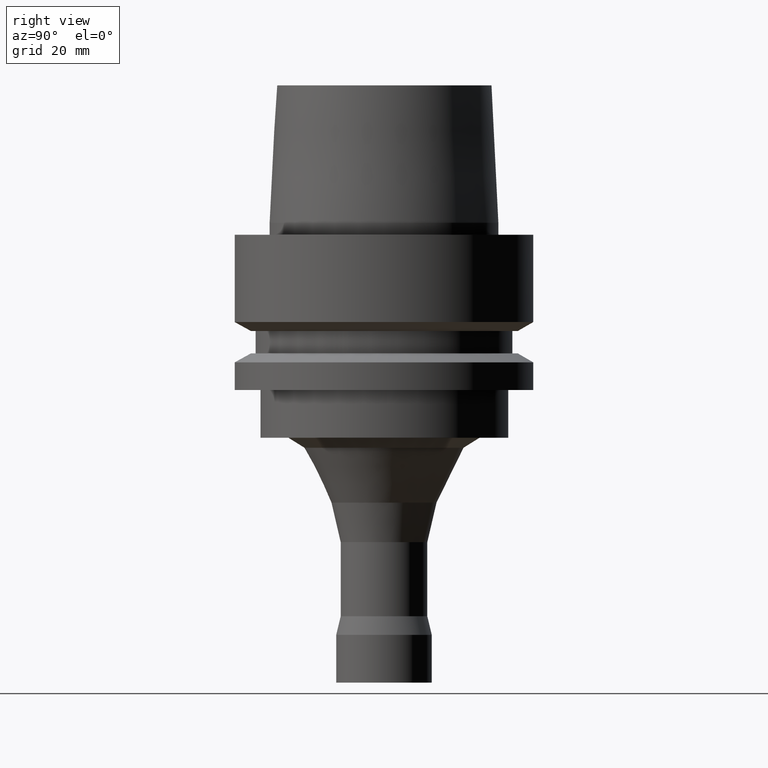
[diagram: clean part render]
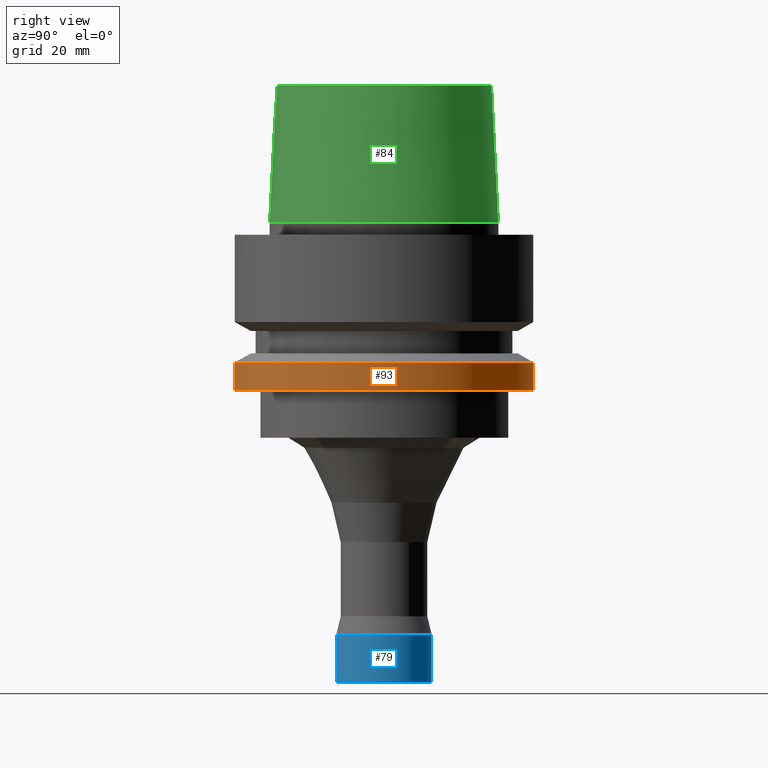
[diagram: same view with three faces highlighted in distinct colors, each labeled with its STEP entity id]
A machine part, right view with three faces highlighted in distinct colors.
Their STEP definitions:

[orange] entity #93 — the highlighted cylindrical surface (bore or boss wall) has radius 25 mm, axis along (-0, -0, 1).
#93=ADVANCED_FACE('',(#149,#150),#151,.T.);
#149=FACE_BOUND('',#210,.T.);
#150=FACE_BOUND('',#211,.T.);
#151=CYLINDRICAL_SURFACE('',#212,25.0);
#210=EDGE_LOOP('',(#307));
#211=EDGE_LOOP('',(#308));
#212=AXIS2_PLACEMENT_3D('',#309,#310,#311);
#307=ORIENTED_EDGE('',*,*,#340,.F.);
#308=ORIENTED_EDGE('',*,*,#339,.T.);
#309=CARTESIAN_POINT('',(1.45051756469206E-015,2.90103512938411E-015,-23.688749535));
#310=DIRECTION('',(-6.12323399573677E-017,-1.22464679914735E-016,1.0));
#311=DIRECTION('',(-1.23259516440783E-032,1.0,1.22464679914735E-016));
#339=EDGE_CURVE('',#376,#376,#377,.T.);
#340=EDGE_CURVE('',#378,#378,#379,.T.);
#376=VERTEX_POINT('',#416);
#377=CIRCLE('',#417,25.0);
#378=VERTEX_POINT('',#418);
#379=CIRCLE('',#419,25.0);
#416=CARTESIAN_POINT('',(1.30899429049255E-015,25.0,-21.37749907));
#417=AXIS2_PLACEMENT_3D('',#473,#474,#475);
#418=CARTESIAN_POINT('',(1.59204083889156E-015,25.0,-26.0));
#419=AXIS2_PLACEMENT_3D('',#476,#477,#478);
#473=CARTESIAN_POINT('',(1.30899429049255E-015,2.6179885809851E-015,-21.37749907));
#474=DIRECTION('',(6.12323399573677E-017,1.22464679914735E-016,-1.0));
#475=DIRECTION('',(-1.23259516440783E-032,1.0,1.22464679914735E-016));
#476=CARTESIAN_POINT('',(1.59204083889156E-015,3.18408167778312E-015,-26.0));
#477=DIRECTION('',(6.12323399573677E-017,1.22464679914735E-016,-1.0));
#478=DIRECTION('',(-1.23259516440783E-032,1.0,1.22464679914735E-016));

[blue] entity #79 — the highlighted cylindrical surface (bore or boss wall) has radius 8 mm, axis along (-0, -0, 1).
#79=ADVANCED_FACE('',(#109,#110),#111,.T.);
#109=FACE_BOUND('',#170,.T.);
#110=FACE_BOUND('',#171,.T.);
#111=CYLINDRICAL_SURFACE('',#172,8.0);
#170=EDGE_LOOP('',(#239));
#171=EDGE_LOOP('',(#240));
#172=AXIS2_PLACEMENT_3D('',#241,#242,#243);
#239=ORIENTED_EDGE('',*,*,#327,.F.);
#240=ORIENTED_EDGE('',*,*,#326,.T.);
#241=CARTESIAN_POINT('',(4.3474961369731E-015,8.69499227394621E-015,-71.0));
#242=DIRECTION('',(-6.12323399573677E-017,-1.22464679914735E-016,1.0));
#243=DIRECTION('',(-1.23259516440783E-032,1.0,1.22464679914735E-016));
#326=EDGE_CURVE('',#350,#350,#351,.T.);
#327=EDGE_CURVE('',#352,#352,#353,.T.);
#350=VERTEX_POINT('',#390);
#351=CIRCLE('',#391,8.0);
#352=VERTEX_POINT('',#392);
#353=CIRCLE('',#393,8.0);
#390=CARTESIAN_POINT('',(4.10256677714363E-015,8.00000000000001,-67.0));
#391=AXIS2_PLACEMENT_3D('',#434,#435,#436);
#392=CARTESIAN_POINT('',(4.59242549680257E-015,8.00000000000001,-75.0));
#393=AXIS2_PLACEMENT_3D('',#437,#438,#439);
#434=CARTESIAN_POINT('',(4.10256677714363E-015,8.20513355428726E-015,-67.0));
#435=DIRECTION('',(6.12323399573677E-017,1.22464679914735E-016,-1.0));
#436=DIRECTION('',(-1.23259516440783E-032,1.0,1.22464679914735E-016));
#437=CARTESIAN_POINT('',(4.59242549680257E-015,9.18485099360515E-015,-75.0));
#438=DIRECTION('',(6.12323399573677E-017,1.22464679914735E-016,-1.0));
#439=DIRECTION('',(-1.23259516440783E-032,1.0,1.22464679914735E-016));

[green] entity #84 — the highlighted conical surface has half-angle 2.862 deg.
#84=ADVANCED_FACE('',(#122,#123),#124,.T.);
#122=FACE_BOUND('',#183,.T.);
#123=FACE_BOUND('',#184,.T.);
#124=CONICAL_SURFACE('',#185,18.5750000005215,0.049958395676703);
#183=EDGE_LOOP('',(#262));
#184=EDGE_LOOP('',(#263));
#185=AXIS2_PLACEMENT_3D('',#264,#265,#266);
#262=ORIENTED_EDGE('',*,*,#331,.F.);
#263=ORIENTED_EDGE('',*,*,#330,.T.);
#264=CARTESIAN_POINT('',(-8.26636589424463E-016,-1.65327317884893E-015,13.5));
#265=DIRECTION('',(6.12323399573677E-017,1.22464679914735E-016,-1.0));
#266=DIRECTION('',(-1.23259516440783E-032,1.0,1.22464679914735E-016));
#330=EDGE_CURVE('',#358,#358,#359,.T.);
#331=EDGE_CURVE('',#360,#360,#361,.T.);
#358=VERTEX_POINT('',#398);
#359=CIRCLE('',#399,18.0000000010431);
#360=VERTEX_POINT('',#400);
#361=CIRCLE('',#401,19.15);
#398=CARTESIAN_POINT('',(-1.53080849893419E-015,18.0000000010431,25.0));
#399=AXIS2_PLACEMENT_3D('',#446,#447,#448);
#400=CARTESIAN_POINT('',(-1.22464679914736E-016,19.15,2.0));
#401=AXIS2_PLACEMENT_3D('',#449,#450,#451);
#446=CARTESIAN_POINT('',(-1.53080849893419E-015,-3.06161699786838E-015,25.0));
#447=DIRECTION('',(6.12323399573677E-017,1.22464679914735E-016,-1.0));
#448=DIRECTION('',(-1.23259516440783E-032,1.0,1.22464679914735E-016));
#449=CARTESIAN_POINT('',(-1.22464679914735E-016,-2.44929359829471E-016,2.0));
#450=DIRECTION('',(6.12323399573677E-017,1.22464679914735E-016,-1.0));
#451=DIRECTION('',(-1.23259516440783E-032,1.0,1.22464679914735E-016));